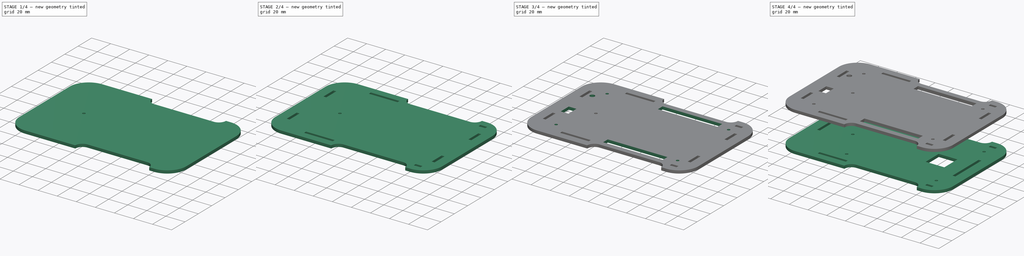
[diagram: build sequence overview — one tinted view per stage of 4, left to right]
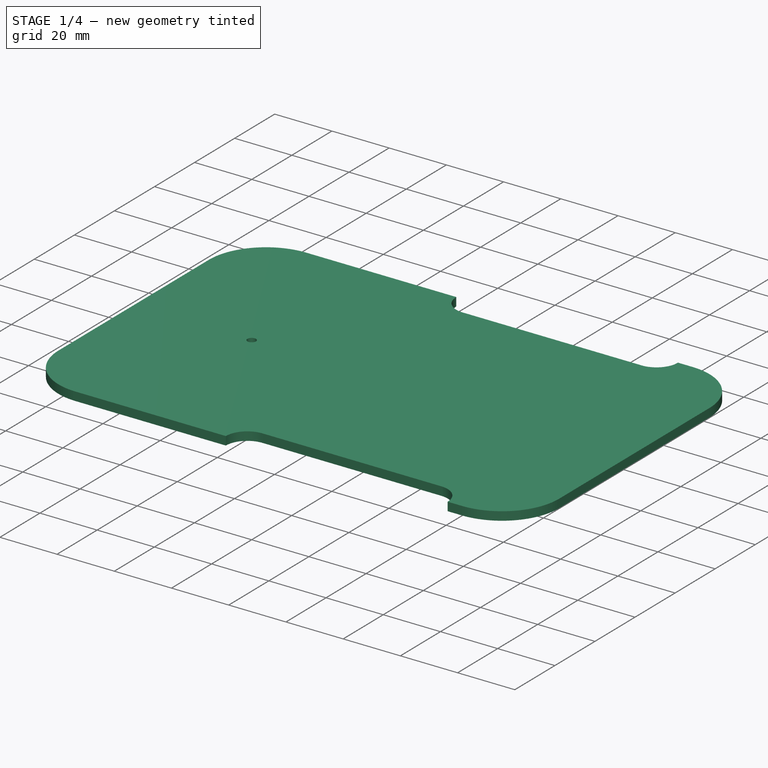
[diagram: stage 1 of 4 — iso view after this stage's code; geometry added in this stage tinted green]
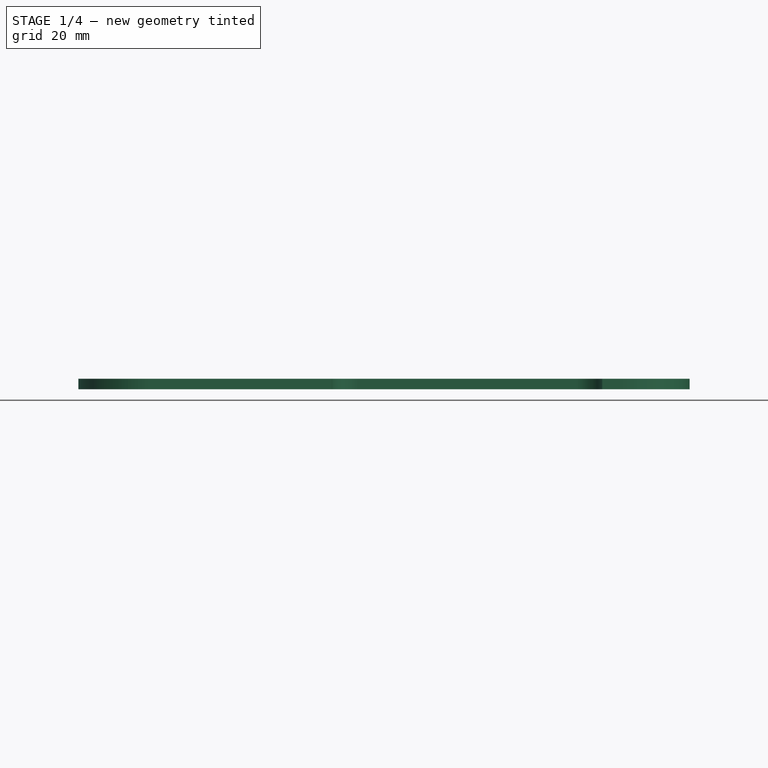
[diagram: stage 1 of 4 — front view after this stage's code; geometry added in this stage tinted green]
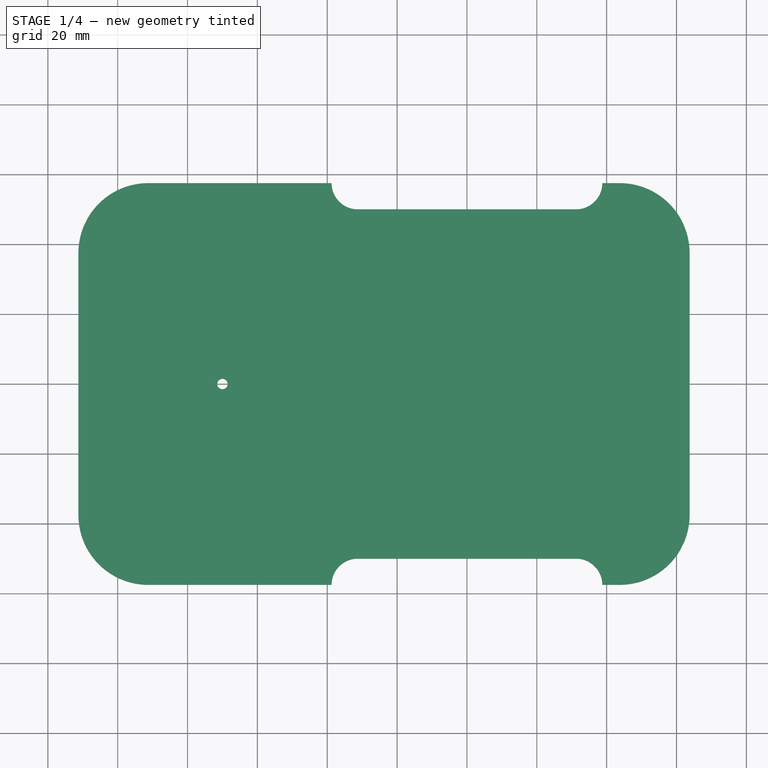
[diagram: stage 1 of 4 — top view after this stage's code; geometry added in this stage tinted green]
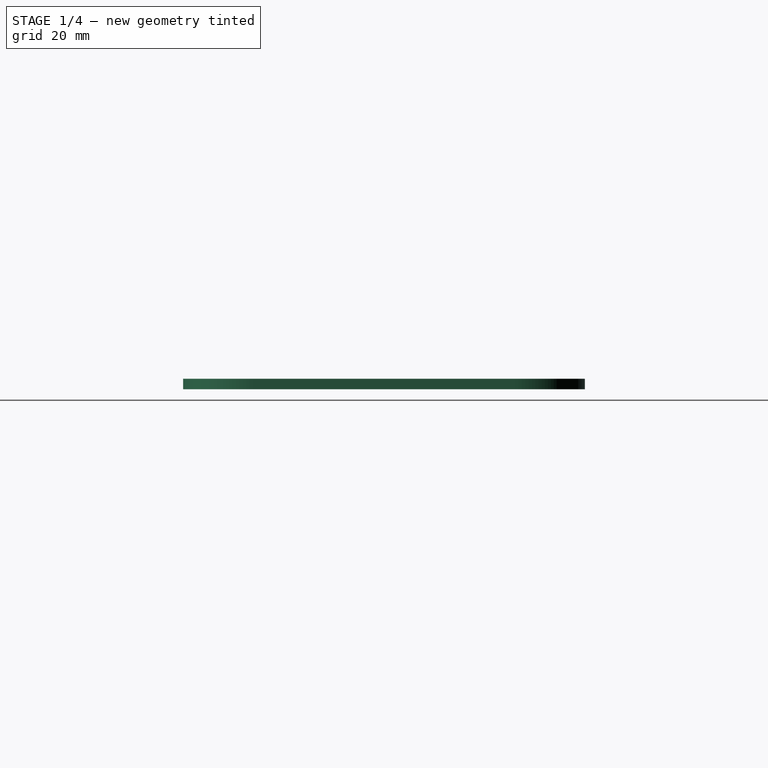
[diagram: stage 1 of 4 — right view after this stage's code; geometry added in this stage tinted green]
FCSTD DOCUMENT  (FreeCAD 0.15R4671 (Git))
Label: EduRoMAATapas
License: CreativeCommons Attribution-ShareAlike
LicenseURL: http://creativecommons.org/licenses/by-sa/4.0/
objects: Sketcher::SketchObject×9, PartDesign::Pocket×8, Part::Part2DObjectPython×3, PartDesign::Pad×1, Part::FeaturePython×1
note: 31 computed .brp shape members not serialized (recipe doc carries the construction recipe); baked Part::Feature solids carry a one-line shape summary decoded from their .brp

FEATURE [Sketcher::SketchObject] Sketch  label="SiluetaTapaSketch"
  sketch-geometry (16):
    g0: LineSegment StartX=63.75 StartY=37.5 StartZ=0 EndX=63.75 EndY=-37.5 EndZ=0
    g1: LineSegment StartX=-111.25 StartY=-37.5 StartZ=0 EndX=-111.25 EndY=37.5 EndZ=0
    g2: ArcOfCircle CenterX=-91.25 CenterY=37.5 CenterZ=0 NormalX=0 NormalY=0 NormalZ=1 Radius=20 StartAngle=1.5708 EndAngle=3.14159
    g3: ArcOfCircle CenterX=43.75 CenterY=37.5 CenterZ=0 NormalX=0 NormalY=0 NormalZ=1 Radius=20 StartAngle=0 EndAngle=1.5708
    g4: ArcOfCircle CenterX=-91.25 CenterY=-37.5 CenterZ=0 NormalX=0 NormalY=0 NormalZ=1 Radius=20 StartAngle=3.14159 EndAngle=4.71239
    g5: ArcOfCircle CenterX=43.75 CenterY=-37.5 CenterZ=0 NormalX=0 NormalY=0 NormalZ=1 Radius=20 StartAngle=4.71239 EndAngle=6.28319
    g6: LineSegment StartX=-91.25 StartY=57.5 StartZ=0 EndX=-38.75 EndY=57.5 EndZ=0
    g7: LineSegment StartX=-91.25 StartY=-57.5 StartZ=0 EndX=-38.75 EndY=-57.5 EndZ=0
    g8: LineSegment StartX=38.75 StartY=57.5 StartZ=0 EndX=43.75 EndY=57.5 EndZ=0
    g9: LineSegment StartX=38.75 StartY=-57.5 StartZ=0 EndX=43.75 EndY=-57.5 EndZ=0
    g10: LineSegment StartX=31.25 StartY=50 StartZ=0 EndX=-31.25 EndY=50 EndZ=0
    g11: LineSegment StartX=31.25 StartY=-50 StartZ=0 EndX=-31.25 EndY=-50 EndZ=0
    g12: ArcOfCircle CenterX=-31.25 CenterY=57.5 CenterZ=0 NormalX=0 NormalY=0 NormalZ=1 Radius=7.5 StartAngle=3.14159 EndAngle=4.71239
    g13: ArcOfCircle CenterX=31.25 CenterY=57.5 CenterZ=0 NormalX=0 NormalY=0 NormalZ=1 Radius=7.5 StartAngle=4.71239 EndAngle=6.28319
    g14: ArcOfCircle CenterX=-31.25 CenterY=-57.5 CenterZ=0 NormalX=0 NormalY=0 NormalZ=1 Radius=7.5 StartAngle=1.5708 EndAngle=3.1416
    g15: ArcOfCircle CenterX=31.25 CenterY=-57.5 CenterZ=0 NormalX=0 NormalY=0 NormalZ=1 Radius=7.5 StartAngle=0 EndAngle=1.5708
  constraints (46):
    c: Tangent(g1,g2) = 1.5708
    c: Tangent(g0,g3) = 1.5708
    c: Tangent(g1,g4) = 1.5708
    c: Tangent(g0,g5) = 1.5708
    c: Equal(g4,g5)
    c: Equal(g5,g3)
    c: Equal(g3,g2)
    c: Radius(g3) = 20
    c: Equal(g1,g0)
    c: DistanceY(g1) = 75
    c: Symmetric(g0,g0,g-1)
    c: Horizontal(g6)
    c: Horizontal(g7)
    c: Horizontal(g8)
    c: Horizontal(g9)
    c: Coincident(g2,g6)
    c: Coincident(g3,g8)
    c: Coincident(g4,g7)
    c: Coincident(g5,g9)
    c: Tangent(g3,g8)
    c: Tangent(g9,g5)
    c: Tangent(g2,g6)
    c: Tangent(g4,g7)
    c: Equal(g6,g7)
    c: Symmetric(g1,g1,g-1)
    c: Equal(g8,g9)
    c: DistanceX(g9) = 5
    c: Horizontal(g10)
    c: Tangent(g10,g12) = 1.5708
    c: Tangent(g10,g13) = 1.5708
    c: Tangent(g11,g14) = -1.5708
    c: Tangent(g11,g15) = -1.5708
    c: Equal(g12,g13)
    c: Equal(g13,g14)
    c: Equal(g14,g15)
    c: Radius(g12) = 7.5
    c: Symmetric(g10,g11,g-1)
    c: Equal(g10,g11)
    c: DistanceY(g10,g11) = -100
    c: Coincident(g6,g12)
    c: Coincident(g7,g14)
    c: Coincident(g8,g13)
    c: Coincident(g9,g15)
    c: DistanceX(g7) = 52.5
    c: DistanceX(g11) = -62.5
    c: Symmetric(g11,g11,g-2)
FEATURE [PartDesign::Pad] Pad  label="TapaInferiorRelleno"
  Length = 3
  Length2 = 100
  Sketch = -> Sketch
  Type = 0
FEATURE [Sketcher::SketchObject] Sketch001  label="TornillosSketch"
  Placement = pos=(0,0,3) rot=(0,0,1;0rad)
  Support = -> Pad [Face18]
  sketch-geometry (1):
    g0: Circle CenterX=-70 CenterY=0 CenterZ=0 NormalX=0 NormalY=0 NormalZ=1 Radius=1.5
  constraints (3):
    c: PointOnObject(g0,g-1)
    c: Radius(g0) = 1.5
    c: DistanceX(g-1,g0) = -70
FEATURE [PartDesign::Pocket] Pocket  label="TapaInferiorTornillos"
  Length = 5
  Sketch = -> Sketch001
  Type = 1
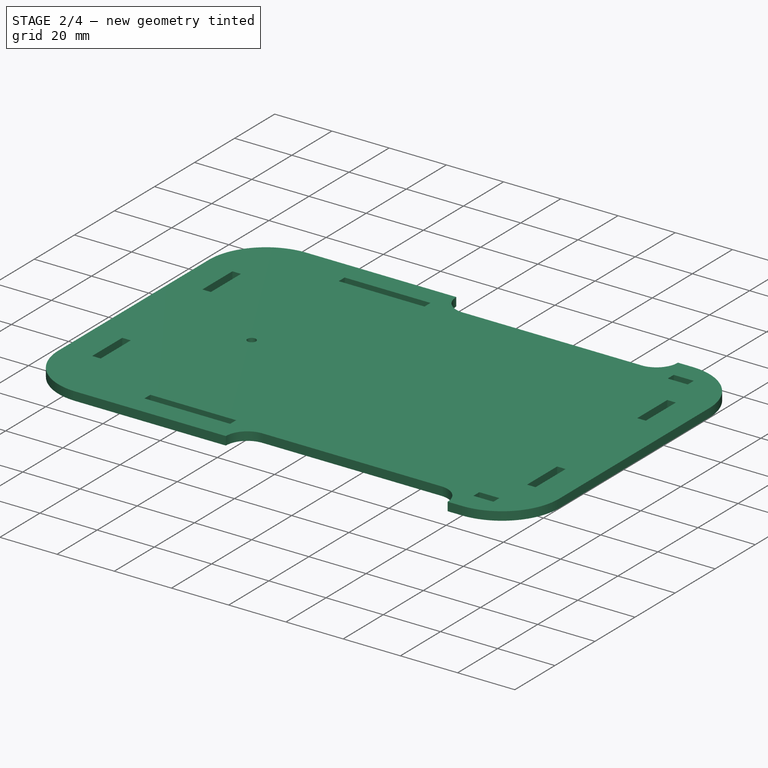
[diagram: stage 2 of 4 — iso view after this stage's code; geometry added in this stage tinted green]
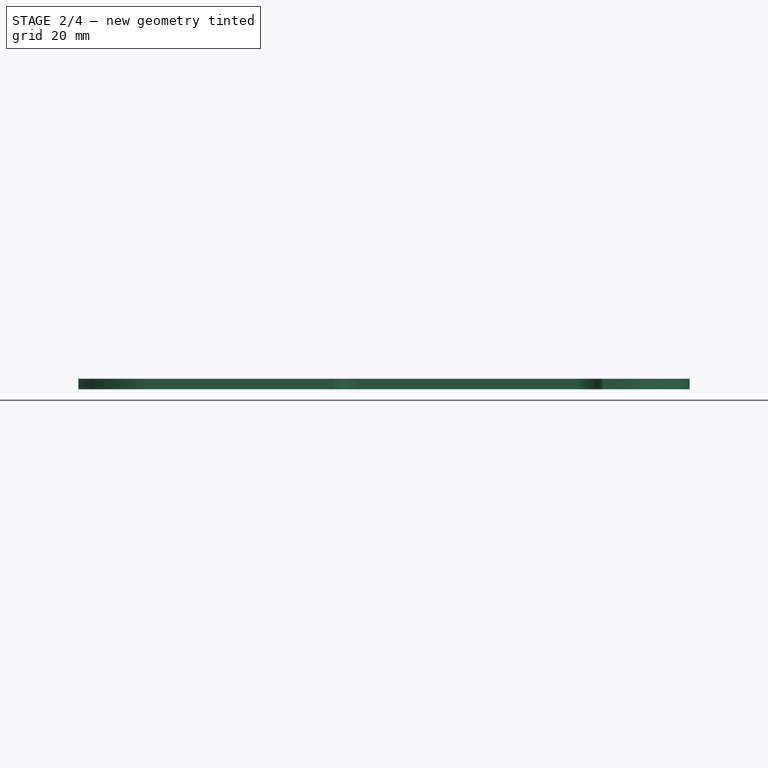
[diagram: stage 2 of 4 — front view after this stage's code; geometry added in this stage tinted green]
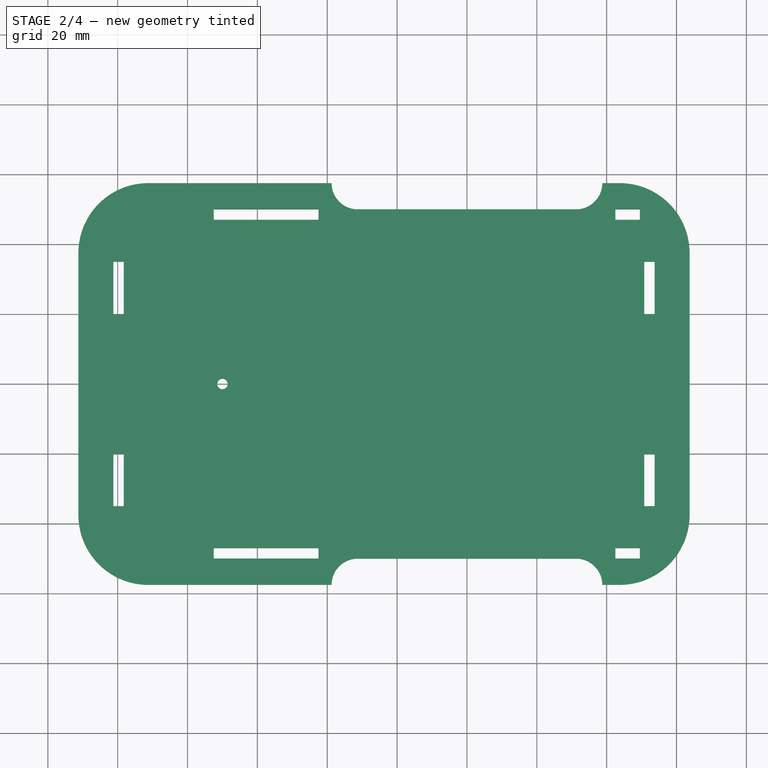
[diagram: stage 2 of 4 — top view after this stage's code; geometry added in this stage tinted green]
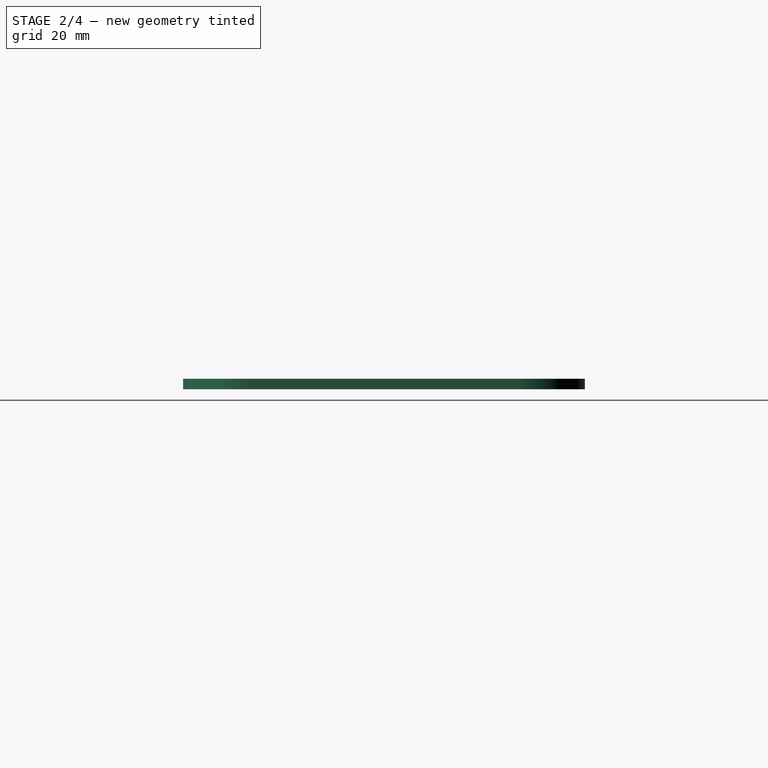
[diagram: stage 2 of 4 — right view after this stage's code; geometry added in this stage tinted green]
FEATURE [Sketcher::SketchObject] Sketch002  label="EncastreLateralesSketch"
  Placement = pos=(0,0,3) rot=(0,0,1;0rad)
  Support = -> Pocket [Face5]
  sketch-geometry (18):
    g0: LineSegment StartX=-72.5 StartY=-47 StartZ=0 EndX=-42.5 EndY=-47 EndZ=0
    g1: LineSegment StartX=-42.5 StartY=-47 StartZ=0 EndX=-42.5 EndY=-50 EndZ=0
    g2: LineSegment StartX=-42.5 StartY=-50 StartZ=0 EndX=-72.5 EndY=-50 EndZ=0
    g3: LineSegment StartX=-72.5 StartY=-50 StartZ=0 EndX=-72.5 EndY=-47 EndZ=0
    g4: LineSegment StartX=-72.5 StartY=50 StartZ=0 EndX=-42.5 EndY=50 EndZ=0
    g5: LineSegment StartX=-42.5 StartY=50 StartZ=0 EndX=-42.5 EndY=47 EndZ=0
    g6: LineSegment StartX=-42.5 StartY=47 StartZ=0 EndX=-72.5 EndY=47 EndZ=0
    g7: LineSegment StartX=-72.5 StartY=47 StartZ=0 EndX=-72.5 EndY=50 EndZ=0
    g8: LineSegment StartX=42.5 StartY=47 StartZ=0 EndX=49.5 EndY=47 EndZ=0
    g9: LineSegment StartX=49.5 StartY=47 StartZ=0 EndX=49.5 EndY=50 EndZ=0
    g10: LineSegment StartX=49.5 StartY=50 StartZ=0 EndX=42.5 EndY=50 EndZ=0
    g11: LineSegment StartX=42.5 StartY=50 StartZ=0 EndX=42.5 EndY=47 EndZ=0
    g12: LineSegment StartX=42.5 StartY=-50 StartZ=0 EndX=49.5 EndY=-50 EndZ=0
    g13: LineSegment StartX=49.5 StartY=-50 StartZ=0 EndX=49.5 EndY=-47 EndZ=0
    g14: LineSegment StartX=49.5 StartY=-47 StartZ=0 EndX=42.5 EndY=-47 EndZ=0
    g15: LineSegment StartX=42.5 StartY=-47 StartZ=0 EndX=42.5 EndY=-50 EndZ=0
    g16: LineSegment [constr] StartX=-42.5 StartY=47 StartZ=0 EndX=42.5 EndY=47 EndZ=0
    g17: LineSegment [constr] StartX=-42.5 StartY=-47 StartZ=0 EndX=42.5 EndY=-47 EndZ=0
  constraints (51):
    c: Coincident(g0,g1)
    c: Coincident(g1,g2)
    c: Coincident(g2,g3)
    c: Coincident(g3,g0)
    c: Horizontal(g0)
    c: Horizontal(g2)
    c: Vertical(g1)
    c: Vertical(g3)
    c: Coincident(g4,g5)
    c: Coincident(g5,g6)
    c: Coincident(g6,g7)
    c: Coincident(g7,g4)
    c: Horizontal(g4)
    c: Horizontal(g6)
    c: Vertical(g5)
    c: Vertical(g7)
    c: Coincident(g8,g9)
    c: Coincident(g9,g10)
    c: Coincident(g10,g11)
    c: Coincident(g11,g8)
    c: Horizontal(g8)
    c: Horizontal(g10)
    c: Vertical(g9)
    c: Vertical(g11)
    c: Coincident(g12,g13)
    c: Coincident(g13,g14)
    c: Coincident(g14,g15)
    c: Coincident(g15,g12)
    c: Horizontal(g12)
    c: Horizontal(g14)
    c: Vertical(g13)
    c: Vertical(g15)
    c: Equal(g2,g4)
    c: Equal(g10,g12)
    c: Equal(g1,g5)
    c: Equal(g5,g11)
    c: Equal(g11,g15)
    c: DistanceY(g3) = 3
    c: DistanceX(g10) = -7
    c: DistanceX(g4) = 30
    c: DistanceX(g4,g12) = 85
    c: Coincident(g16,g5)
    c: Coincident(g16,g8)
    c: Horizontal(g16)
    c: Coincident(g17,g0)
    c: Coincident(g17,g14)
    c: Horizontal(g17)
    c: Equal(g16,g17)
    c: DistanceY(g-1,g6) = 47
    c: Symmetric(g0,g5,g-1)
    c: Symmetric(g5,g8,g-2)
FEATURE [PartDesign::Pocket] Pocket001  label="TapaInferiorEncastreLaterales"
  Length = 5
  Sketch = -> Sketch002
  Type = 1
FEATURE [Part::FeaturePython] Clone  label="TapaSuperiorClon"  # Draft clone (typed FeaturePython)
  Objects = -> [Pocket001]
  Placement = pos=(0,0,40) rot=(0,0,1;0rad)
  Scale = (1,1,1)
FEATURE [Sketcher::SketchObject] Sketch005  label="TapaInferiorEncastresSketch"
  Placement = pos=(0,0,43) rot=(0,0,1;0rad)
  Support = -> Clone [Face5]
  sketch-geometry (16):
    g0: LineSegment StartX=50.75 StartY=35 StartZ=0 EndX=53.75 EndY=35 EndZ=0
    g1: LineSegment StartX=53.75 StartY=35 StartZ=0 EndX=53.75 EndY=20 EndZ=0
    g2: LineSegment StartX=53.75 StartY=20 StartZ=0 EndX=50.75 EndY=20 EndZ=0
    g3: LineSegment StartX=50.75 StartY=20 StartZ=0 EndX=50.75 EndY=35 EndZ=0
    g4: LineSegment StartX=53.75 StartY=-20 StartZ=0 EndX=50.75 EndY=-20 EndZ=0
    g5: LineSegment StartX=50.75 StartY=-20 StartZ=0 EndX=50.75 EndY=-35 EndZ=0
    g6: LineSegment StartX=50.75 StartY=-35 StartZ=0 EndX=53.75 EndY=-35 EndZ=0
    g7: LineSegment StartX=53.75 StartY=-35 StartZ=0 EndX=53.75 EndY=-20 EndZ=0
    g8: LineSegment StartX=-101.25 StartY=35 StartZ=0 EndX=-98.25 EndY=35 EndZ=0
    g9: LineSegment StartX=-98.25 StartY=35 StartZ=0 EndX=-98.25 EndY=20 EndZ=0
    g10: LineSegment StartX=-98.25 StartY=20 StartZ=0 EndX=-101.25 EndY=20 EndZ=0
    g11: LineSegment StartX=-101.25 StartY=20 StartZ=0 EndX=-101.25 EndY=35 EndZ=0
    g12: LineSegment StartX=-98.25 StartY=-20 StartZ=0 EndX=-101.25 EndY=-20 EndZ=0
    g13: LineSegment StartX=-101.25 StartY=-20 StartZ=0 EndX=-101.25 EndY=-35 EndZ=0
    g14: LineSegment StartX=-101.25 StartY=-35 StartZ=0 EndX=-98.25 EndY=-35 EndZ=0
    g15: LineSegment StartX=-98.25 StartY=-35 StartZ=0 EndX=-98.25 EndY=-20 EndZ=0
  constraints (46):
    c: Coincident(g0,g1)
    c: Coincident(g1,g2)
    c: Coincident(g2,g3)
    c: Coincident(g3,g0)
    c: Horizontal(g0)
    c: Horizontal(g2)
    c: Vertical(g1)
    c: Vertical(g3)
    c: Coincident(g4,g5)
    c: Coincident(g5,g6)
    c: Coincident(g6,g7)
    c: Coincident(g7,g4)
    c: Horizontal(g4)
    c: Horizontal(g6)
    c: Vertical(g5)
    c: Vertical(g7)
    c: Coincident(g8,g9)
    c: Coincident(g9,g10)
    c: Coincident(g10,g11)
    c: Coincident(g11,g8)
    c: Horizontal(g8)
    c: Horizontal(g10)
    c: Vertical(g9)
    c: Vertical(g11)
    c: Coincident(g12,g13)
    c: Coincident(g13,g14)
    c: Coincident(g14,g15)
    c: Coincident(g15,g12)
    c: Horizontal(g12)
    c: Horizontal(g14)
    c: Vertical(g13)
    c: Vertical(g15)
    c: Equal(g4,g2)
    c: Equal(g12,g10)
    c: DistanceX(g0) = 3
    c: DistanceX(g8) = 3
    c: Equal(g1,g5)
    c: Equal(g11,g15)
    c: DistanceY(g3) = 15
    c: DistanceY(g2,g4) = -40
    c: DistanceY(g9) = -15
    c: DistanceY(g9,g12) = -40
    c: Symmetric(g9,g12,g-1)
    c: Symmetric(g2,g4,g-1)
    c: DistanceX(g-1,g14) = -98.25
    c: DistanceX(g-1,g5) = 50.75
FEATURE [PartDesign::Pocket] Pocket004  label="TapaSuperiorEncastres"
  Length = 5
  Placement = pos=(0,0,40) rot=(0,0,1;0rad)
  Sketch = -> Sketch005
  Type = 1
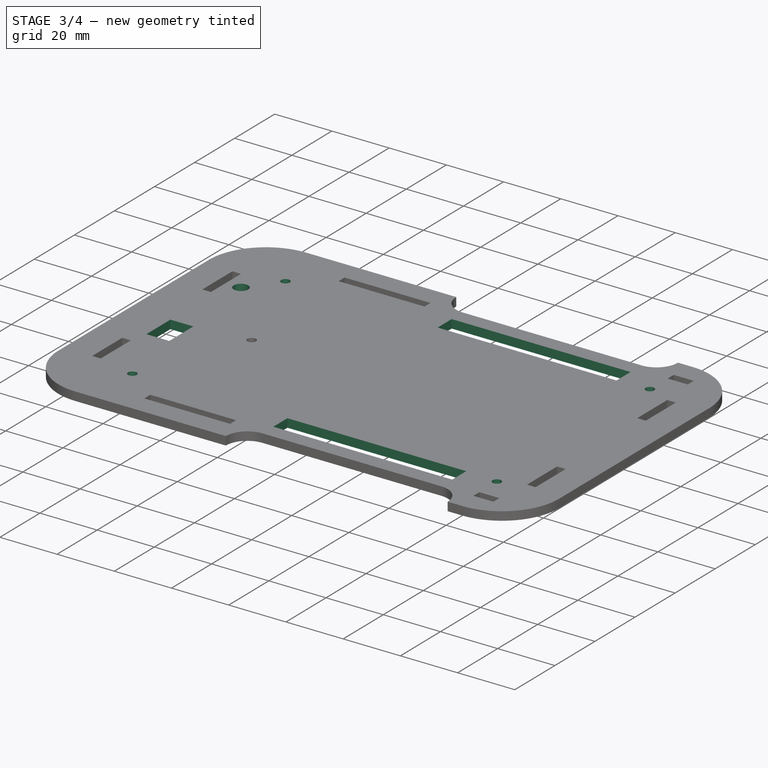
[diagram: stage 3 of 4 — iso view after this stage's code; geometry added in this stage tinted green]
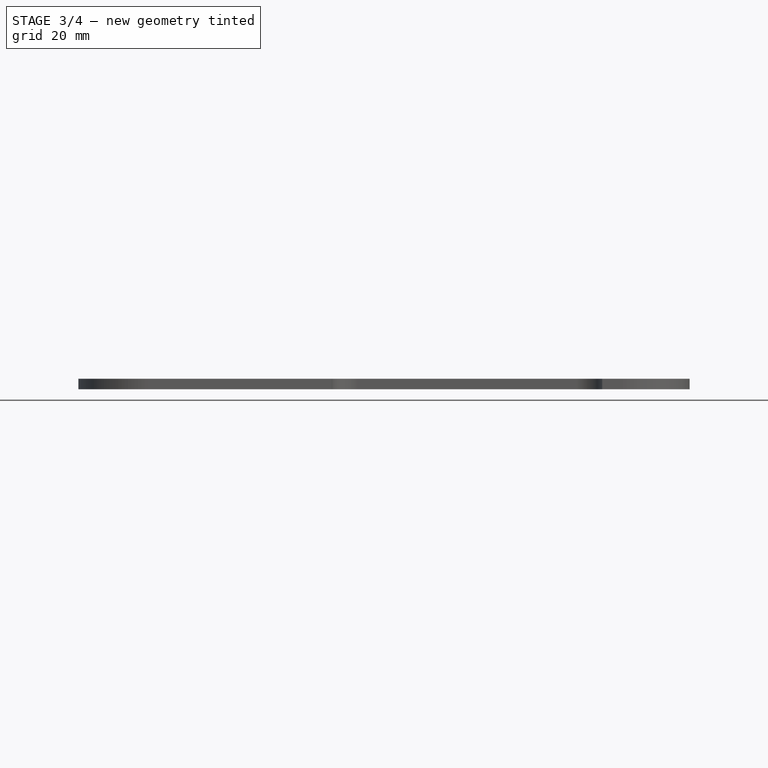
[diagram: stage 3 of 4 — front view after this stage's code; geometry added in this stage tinted green]
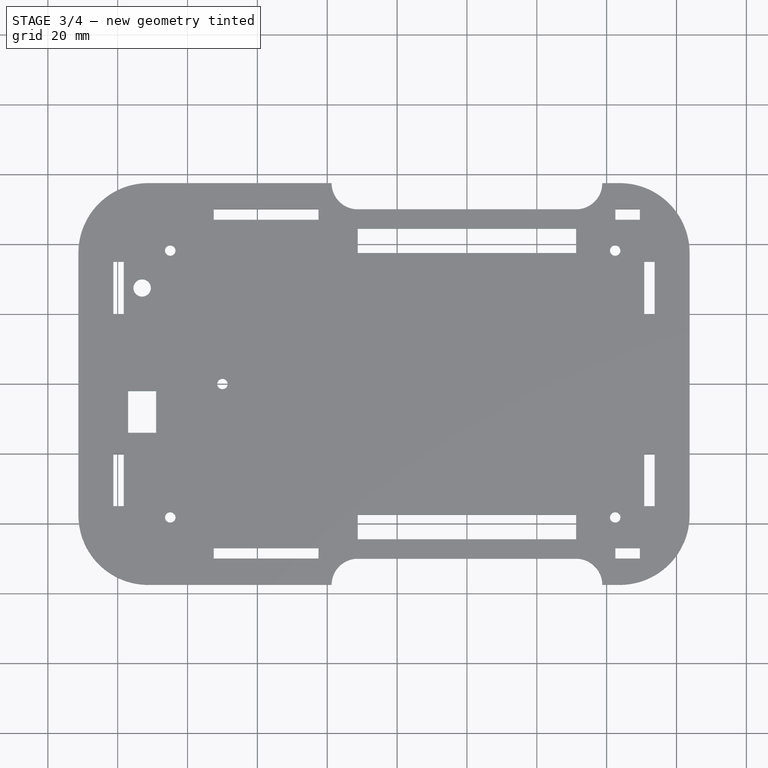
[diagram: stage 3 of 4 — top view after this stage's code; geometry added in this stage tinted green]
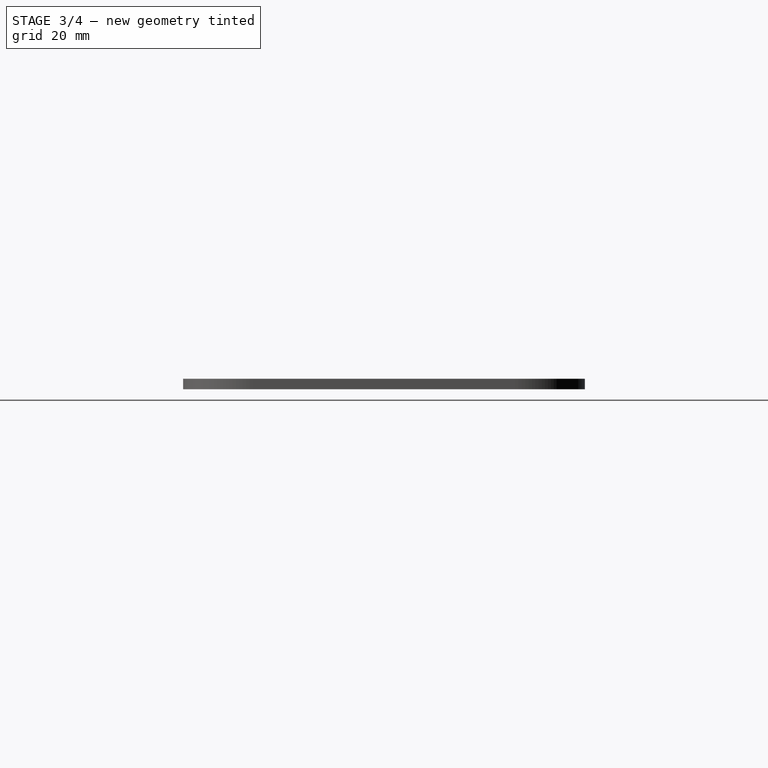
[diagram: stage 3 of 4 — right view after this stage's code; geometry added in this stage tinted green]
FEATURE [Sketcher::SketchObject] Sketch006  label="TapaSuperiorPasacablesSketch"
  Placement = pos=(0,0,43) rot=(0,0,1;0rad)
  Support = -> Pocket004 [Face5]
  sketch-geometry (8):
    g0: LineSegment StartX=-31.25 StartY=44.5 StartZ=0 EndX=31.25 EndY=44.5 EndZ=0
    g1: LineSegment StartX=31.25 StartY=44.5 StartZ=0 EndX=31.25 EndY=37.5 EndZ=0
    g2: LineSegment StartX=31.25 StartY=37.5 StartZ=0 EndX=-31.25 EndY=37.5 EndZ=0
    g3: LineSegment StartX=-31.25 StartY=37.5 StartZ=0 EndX=-31.25 EndY=44.5 EndZ=0
    g4: LineSegment StartX=-31.25 StartY=-37.5 StartZ=0 EndX=31.25 EndY=-37.5 EndZ=0
    g5: LineSegment StartX=31.25 StartY=-37.5 StartZ=0 EndX=31.25 EndY=-44.5 EndZ=0
    g6: LineSegment StartX=31.25 StartY=-44.5 StartZ=0 EndX=-31.25 EndY=-44.5 EndZ=0
    g7: LineSegment StartX=-31.25 StartY=-44.5 StartZ=0 EndX=-31.25 EndY=-37.5 EndZ=0
  constraints (23):
    c: Coincident(g0,g1)
    c: Coincident(g1,g2)
    c: Coincident(g2,g3)
    c: Coincident(g3,g0)
    c: Horizontal(g0)
    c: Horizontal(g2)
    c: Vertical(g1)
    c: Vertical(g3)
    c: Coincident(g4,g5)
    c: Coincident(g5,g6)
    c: Coincident(g6,g7)
    c: Coincident(g7,g4)
    c: Horizontal(g4)
    c: Horizontal(g6)
    c: Vertical(g5)
    c: Vertical(g7)
    c: Equal(g2,g4)
    c: Equal(g3,g7)
    c: Symmetric(g2,g4,g-1)
    c: DistanceX(g0) = 62.5
    c: Symmetric(g1,g2,g-2)
    c: DistanceY(g3) = 7
    c: DistanceY(g1,g4) = -75
FEATURE [PartDesign::Pocket] Pocket005  label="TapaSuperiorPasacables"
  Length = 5
  Placement = pos=(0,0,40) rot=(0,0,1;0rad)
  Sketch = -> Sketch006
  Type = 1
FEATURE [Sketcher::SketchObject] Sketch007  label="TapaSuperiorEduCIAASketch"
  Placement = pos=(0,0,43) rot=(0,0,1;0rad)
  Support = -> Pocket005 [Face5]
  sketch-geometry (7):
    g0: Circle CenterX=-84.95 CenterY=38.2 CenterZ=0 NormalX=0 NormalY=0 NormalZ=1 Radius=1.5
    g1: Circle CenterX=-84.95 CenterY=-38.2 CenterZ=0 NormalX=0 NormalY=0 NormalZ=1 Radius=1.5
    g2: Circle CenterX=42.45 CenterY=38.2 CenterZ=0 NormalX=0 NormalY=0 NormalZ=1 Radius=1.5
    g3: Circle CenterX=42.45 CenterY=-38.2 CenterZ=0 NormalX=0 NormalY=0 NormalZ=1 Radius=1.5
    g4: LineSegment [constr] StartX=-84.95 StartY=38.2 StartZ=0 EndX=-84.95 EndY=-38.2 EndZ=0
    g5: LineSegment [constr] StartX=-84.95 StartY=-38.2 StartZ=0 EndX=42.45 EndY=-38.2 EndZ=0
    g6: LineSegment [constr] StartX=42.45 StartY=-38.2 StartZ=0 EndX=42.45 EndY=38.2 EndZ=0
  constraints (17):
    c: Equal(g0,g1)
    c: Equal(g1,g2)
    c: Equal(g2,g3)
    c: Symmetric(g0,g1,g-1)
    c: Coincident(g4,g0)
    c: Coincident(g4,g1)
    c: Coincident(g5,g1)
    c: Coincident(g5,g3)
    c: Horizontal(g5)
    c: Vertical(g6)
    c: Coincident(g6,g2)
    c: Equal(g4,g6)
    c: DistanceY(g4) = -76.4
    c: DistanceX(g5) = 127.4
    c: DistanceX(g-1,g2) = 42.45
    c: Radius(g2) = 1.5
    c: Coincident(g6,g3)
FEATURE [PartDesign::Pocket] Pocket006  label="TapaSuperiorEduCIAA"
  Length = 5
  Placement = pos=(0,0,40) rot=(0,0,1;0rad)
  Sketch = -> Sketch007
  Type = 1
FEATURE [Part::Part2DObjectPython] Shape2DView  label="TapaInferiorHuecosPCB_corte2D"  # Draft 2D object (typed FeaturePython)
  Base = -> Pocket003
  HiddenLines = false
  Projection = (0,0,1)
  ProjectionMode = 0
  SegmentLength = 0.05
  Tessellation = false
FEATURE [Part::Part2DObjectPython] Shape2DView001  label="TapaSuperiorEduCIAA_corte2D"  # Draft 2D object (typed FeaturePython)
  Base = -> Pocket006
  HiddenLines = false
  Placement = pos=(0,120,0) rot=(0,0,1;0rad)
  Projection = (0,0,1)
  ProjectionMode = 0
  SegmentLength = 0.05
  Tessellation = false
FEATURE [Sketcher::SketchObject] Sketch008  label="CargadorBateriaSketch"
  Placement = pos=(0,0,43) rot=(0,0,1;0rad)
  Support = -> Pocket006 [Face5]
  sketch-geometry (10):
    g0: LineSegment [constr] StartX=-90 StartY=37 StartZ=0 EndX=-70 EndY=37 EndZ=0
    g1: LineSegment [constr] StartX=-70 StartY=37 StartZ=0 EndX=-70 EndY=-37 EndZ=0
    g2: LineSegment [constr] StartX=-70 StartY=-37 StartZ=0 EndX=-90 EndY=-37 EndZ=0
    g3: LineSegment [constr] StartX=-90 StartY=-37 StartZ=0 EndX=-90 EndY=37 EndZ=0
    g4: Circle CenterX=-93 CenterY=27.5 CenterZ=0 NormalX=0 NormalY=0 NormalZ=1 Radius=2.5
    g5: LineSegment StartX=-97 StartY=-2 StartZ=0 EndX=-89 EndY=-2 EndZ=0
    g6: LineSegment StartX=-89 StartY=-2 StartZ=0 EndX=-89 EndY=-14 EndZ=0
    g7: LineSegment StartX=-89 StartY=-14 StartZ=0 EndX=-97 EndY=-14 EndZ=0
    g8: LineSegment StartX=-97 StartY=-14 StartZ=0 EndX=-97 EndY=-2 EndZ=0
    g9: LineSegment [constr] StartX=-93 StartY=27.5 StartZ=0 EndX=-93 EndY=-2 EndZ=0
  constraints (30):
    c: Coincident(g0,g1)
    c: Coincident(g1,g2)
    c: Coincident(g2,g3)
    c: Coincident(g3,g0)
    c: Horizontal(g0)
    c: Horizontal(g2)
    c: Vertical(g1)
    c: Vertical(g3)
    c: DistanceX(g2) = -20
    c: DistanceY(g3) = 74
    c: Symmetric(g2,g0,g-1)
    c: DistanceX(g-1,g0) = -70
    c: Radius(g4) = 2.5
    c: DistanceY(g-1,g4) = 27.5
    c: DistanceX(g-1,g4) = -93
    c: Coincident(g5,g6)
    c: Coincident(g6,g7)
    c: Coincident(g7,g8)
    c: Horizontal(g5)
    c: Horizontal(g7)
    c: Vertical(g6)
    c: Vertical(g8)
    c: DistanceX(g7) = -8
    c: DistanceY(g6) = -12
    c: Coincident(g9,g4)
    c: Vertical(g9)
    c: DistanceY(g9) = -29.5
    c: Coincident(g8,g5)
    c: PointOnObject(g9,g5)
    c: DistanceX(g9,g5) = 4
FEATURE [PartDesign::Pocket] Pocket007  label="TapaSuperiorEduCIAABateria"
  Length = 5
  Placement = pos=(0,0,40) rot=(0,0,1;0rad)
  Sketch = -> Sketch008
  Type = 1
FEATURE [Part::Part2DObjectPython] Shape2DView002  label="TapaSuperiorEduCIAABat_corte2D"  # Draft 2D object (typed FeaturePython)
  Base = -> Pocket007
  HiddenLines = false
  Placement = pos=(0,120,0) rot=(0,0,1;0rad)
  Projection = (0,0,1)
  ProjectionMode = 0
  SegmentLength = 0.05
  Tessellation = false
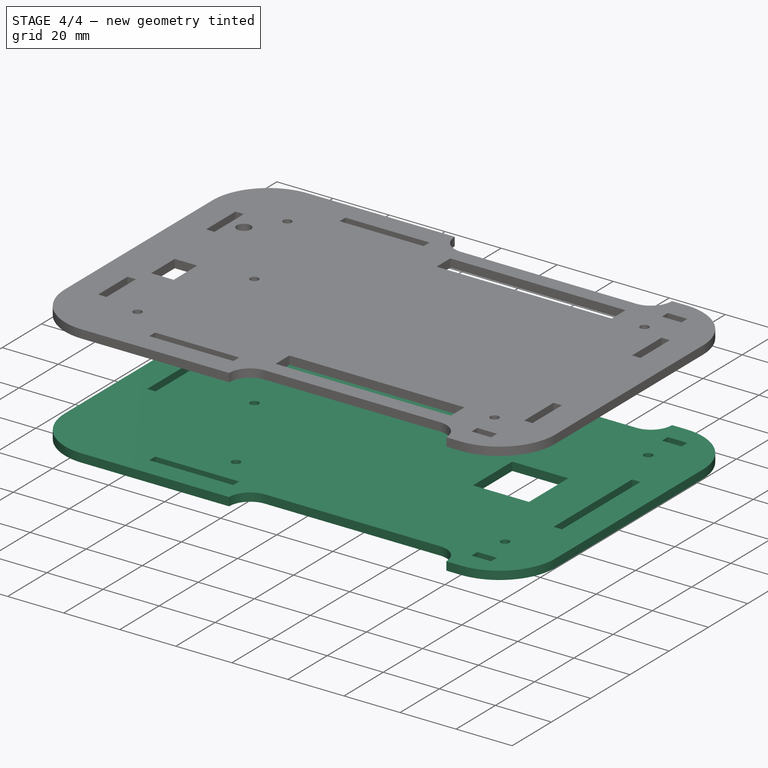
[diagram: stage 4 of 4 — iso view after this stage's code; geometry added in this stage tinted green]
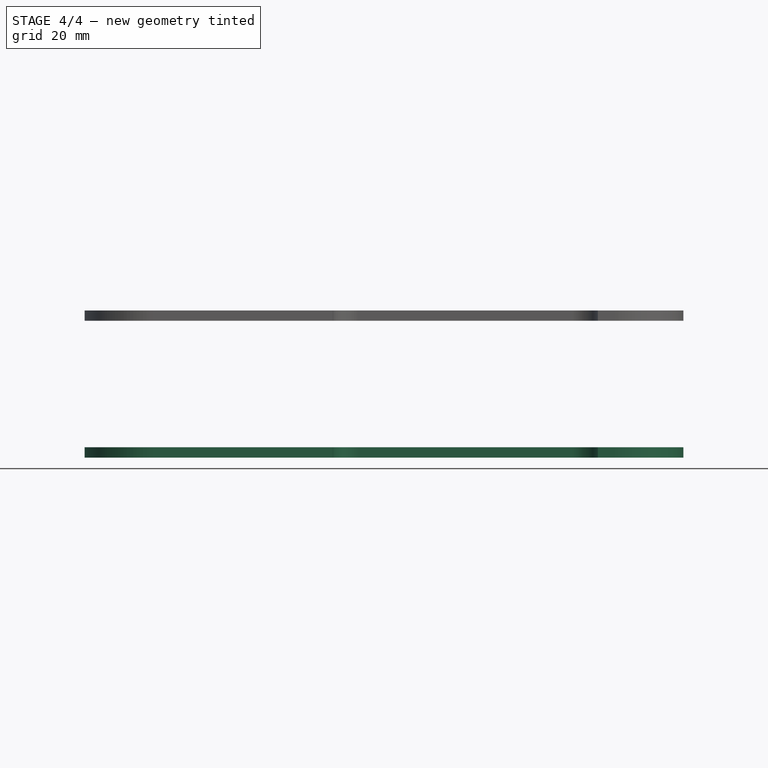
[diagram: stage 4 of 4 — front view after this stage's code; geometry added in this stage tinted green]
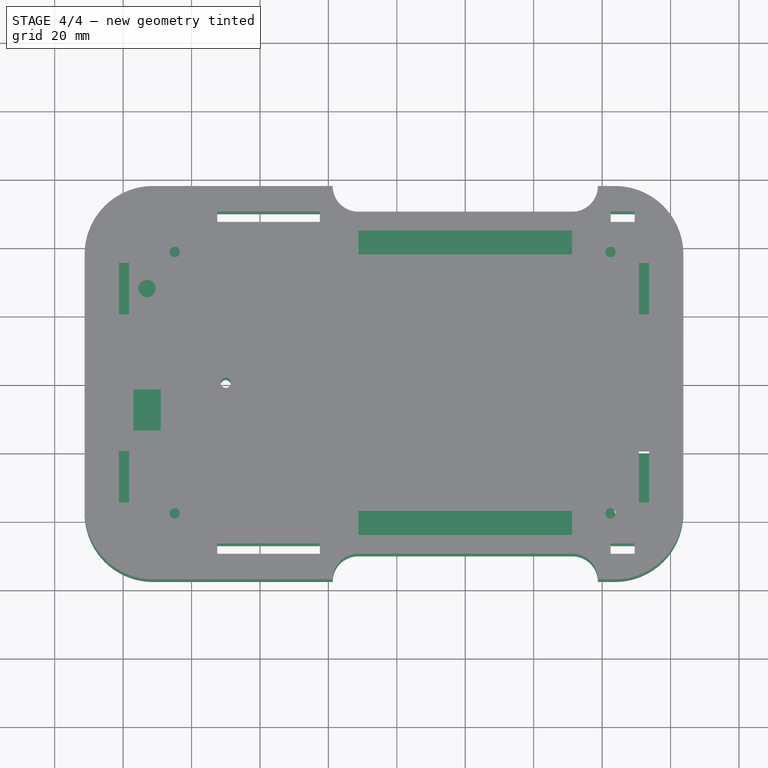
[diagram: stage 4 of 4 — top view after this stage's code; geometry added in this stage tinted green]
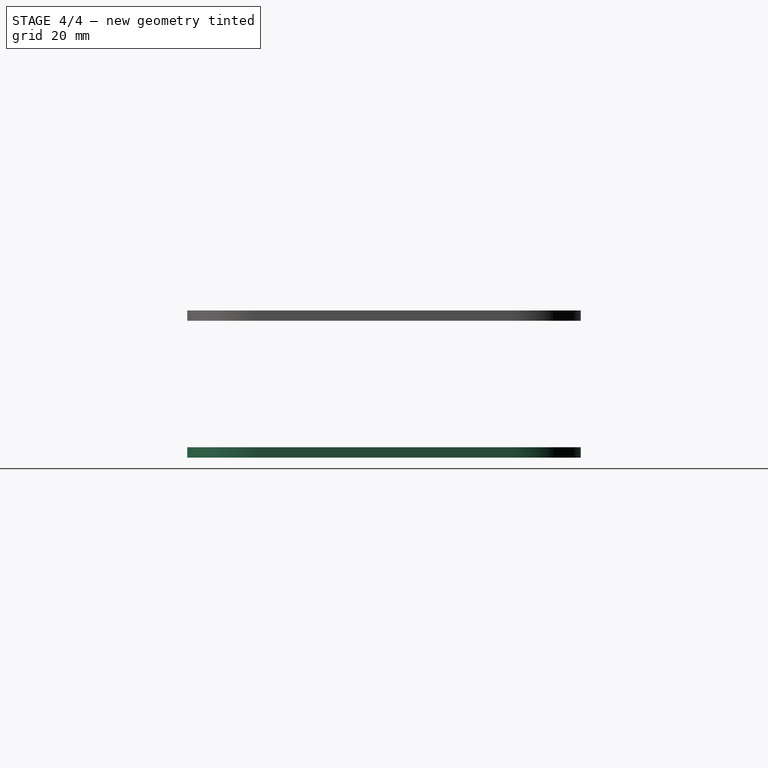
[diagram: stage 4 of 4 — right view after this stage's code; geometry added in this stage tinted green]
FEATURE [Sketcher::SketchObject] Sketch003  label="TapaSuperiorEncastresSketch"
  Placement = pos=(0,0,3) rot=(0,0,1;0rad)
  Support = -> Pocket001 [Face5]
  sketch-geometry (8):
    g0: LineSegment StartX=-101.25 StartY=10 StartZ=0 EndX=-98.25 EndY=10 EndZ=0
    g1: LineSegment StartX=-98.25 StartY=10 StartZ=0 EndX=-98.25 EndY=-10 EndZ=0
    g2: LineSegment StartX=-98.25 StartY=-10 StartZ=0 EndX=-101.25 EndY=-10 EndZ=0
    g3: LineSegment StartX=-101.25 StartY=-10 StartZ=0 EndX=-101.25 EndY=10 EndZ=0
    g4: LineSegment StartX=50.75 StartY=20 StartZ=0 EndX=53.75 EndY=20 EndZ=0
    g5: LineSegment StartX=53.75 StartY=20 StartZ=0 EndX=53.75 EndY=-20 EndZ=0
    g6: LineSegment StartX=53.75 StartY=-20 StartZ=0 EndX=50.75 EndY=-20 EndZ=0
    g7: LineSegment StartX=50.75 StartY=-20 StartZ=0 EndX=50.75 EndY=20 EndZ=0
  constraints (24):
    c: Coincident(g0,g1)
    c: Coincident(g1,g2)
    c: Coincident(g2,g3)
    c: Coincident(g3,g0)
    c: Horizontal(g0)
    c: Horizontal(g2)
    c: Vertical(g1)
    c: Vertical(g3)
    c: Coincident(g4,g5)
    c: Coincident(g5,g6)
    c: Coincident(g6,g7)
    c: Coincident(g7,g4)
    c: Horizontal(g4)
    c: Horizontal(g6)
    c: Vertical(g5)
    c: Vertical(g7)
    c: Equal(g0,g4)
    c: Symmetric(g0,g1,g-1)
    c: Symmetric(g4,g6,g-1)
    c: DistanceY(g3) = 20
    c: DistanceX(g0) = 3
    c: DistanceY(g5) = -40
    c: DistanceX(g-1,g1) = -98.25
    c: DistanceX(g-1,g6) = 50.75
FEATURE [PartDesign::Pocket] Pocket002  label="TabaInferiorEncastres"
  Length = 5
  Sketch = -> Sketch003
  Type = 1
FEATURE [Sketcher::SketchObject] Sketch004  label="TapaInferiorHuecosPCBSketch"
  Placement = pos=(0,0,3) rot=(0,0,1;0rad)
  Support = -> Pocket002 [Face5]
  sketch-geometry (11):
    g0: LineSegment StartX=15 StartY=10 StartZ=0 EndX=35 EndY=10 EndZ=0
    g1: LineSegment StartX=35 StartY=10 StartZ=0 EndX=35 EndY=-10 EndZ=0
    g2: LineSegment StartX=35 StartY=-10 StartZ=0 EndX=15 EndY=-10 EndZ=0
    g3: LineSegment StartX=15 StartY=-10 StartZ=0 EndX=15 EndY=10 EndZ=0
    g4: Circle CenterX=-51 CenterY=36.5 CenterZ=0 NormalX=0 NormalY=0 NormalZ=1 Radius=1.5
    g5: Circle CenterX=-51 CenterY=-36.5 CenterZ=0 NormalX=0 NormalY=0 NormalZ=1 Radius=1.5
    g6: Circle CenterX=45 CenterY=36.5 CenterZ=0 NormalX=0 NormalY=0 NormalZ=1 Radius=1.5
    g7: Circle CenterX=45 CenterY=-36.5 CenterZ=0 NormalX=0 NormalY=0 NormalZ=1 Radius=1.5
    g8: LineSegment [constr] StartX=-51 StartY=36.5 StartZ=0 EndX=-51 EndY=-36.5 EndZ=0
    g9: LineSegment [constr] StartX=45 StartY=36.5 StartZ=0 EndX=45 EndY=-36.5 EndZ=0
    g10: LineSegment [constr] StartX=-51 StartY=-36.5 StartZ=0 EndX=45 EndY=-36.5 EndZ=0
  constraints (29):
    c: Coincident(g0,g1)
    c: Coincident(g1,g2)
    c: Coincident(g2,g3)
    c: Coincident(g3,g0)
    c: Horizontal(g0)
    c: Horizontal(g2)
    c: Vertical(g1)
    c: Vertical(g3)
    c: Equal(g2,g1)
    c: Symmetric(g0,g2,g-1)
    c: DistanceX(g2) = -20
    c: DistanceX(g-1,g2) = 15
    c: Equal(g5,g4)
    c: Equal(g4,g7)
    c: Equal(g7,g6)
    c: Symmetric(g4,g5,g-1)
    c: Coincident(g8,g4)
    c: Coincident(g8,g5)
    c: Coincident(g9,g6)
    c: Coincident(g9,g7)
    c: Coincident(g10,g5)
    c: Coincident(g10,g7)
    c: Horizontal(g10)
    c: Vertical(g9)
    c: Equal(g8,g9)
    c: DistanceX(g10) = 96
    c: DistanceY(g8) = -73
    c: DistanceX(g-1,g6) = 45
    c: Radius(g6) = 1.5
FEATURE [PartDesign::Pocket] Pocket003  label="TapaInferiorHuecosPCB"
  Length = 5
  Sketch = -> Sketch004
  Type = 1
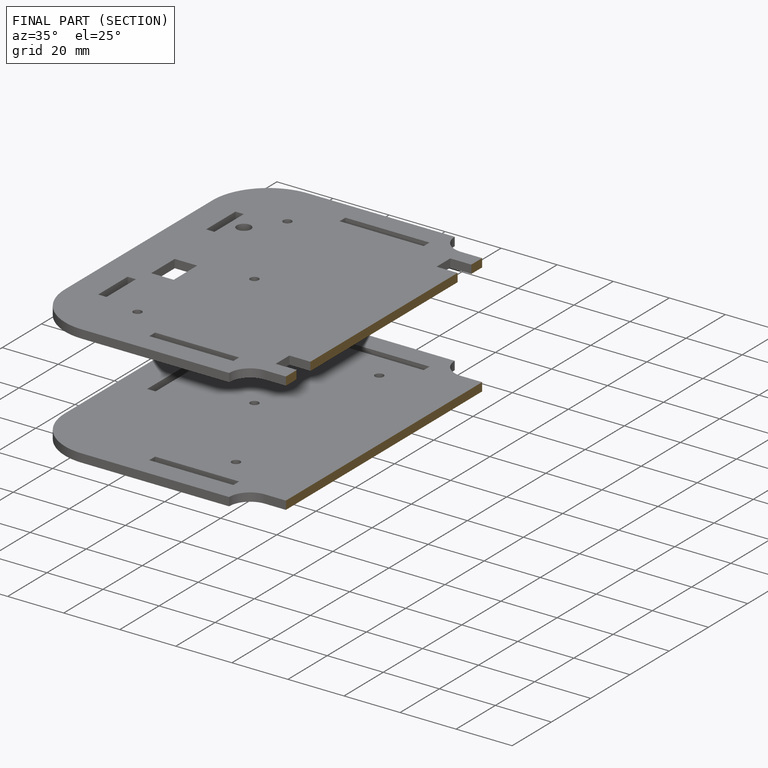
[diagram: finished part — half-section view (interior)]
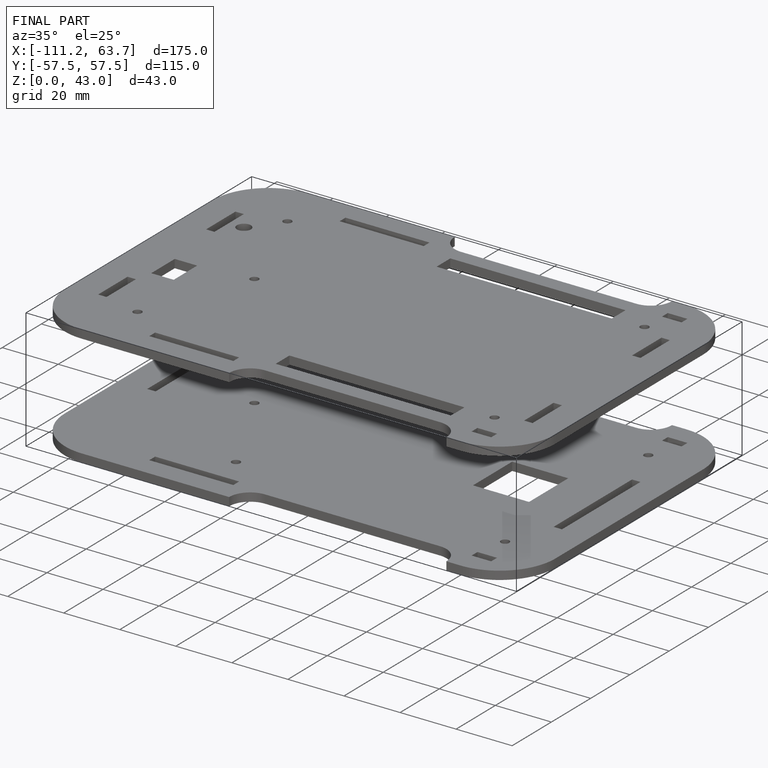
[diagram: finished part — iso view with bounding-box wireframe]
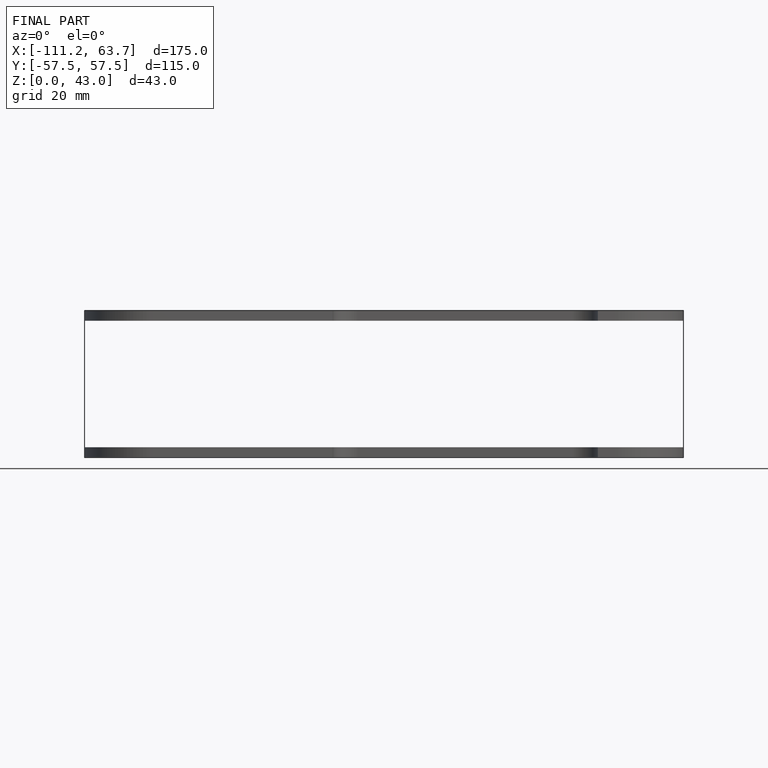
[diagram: finished part — front view with bounding-box wireframe]
